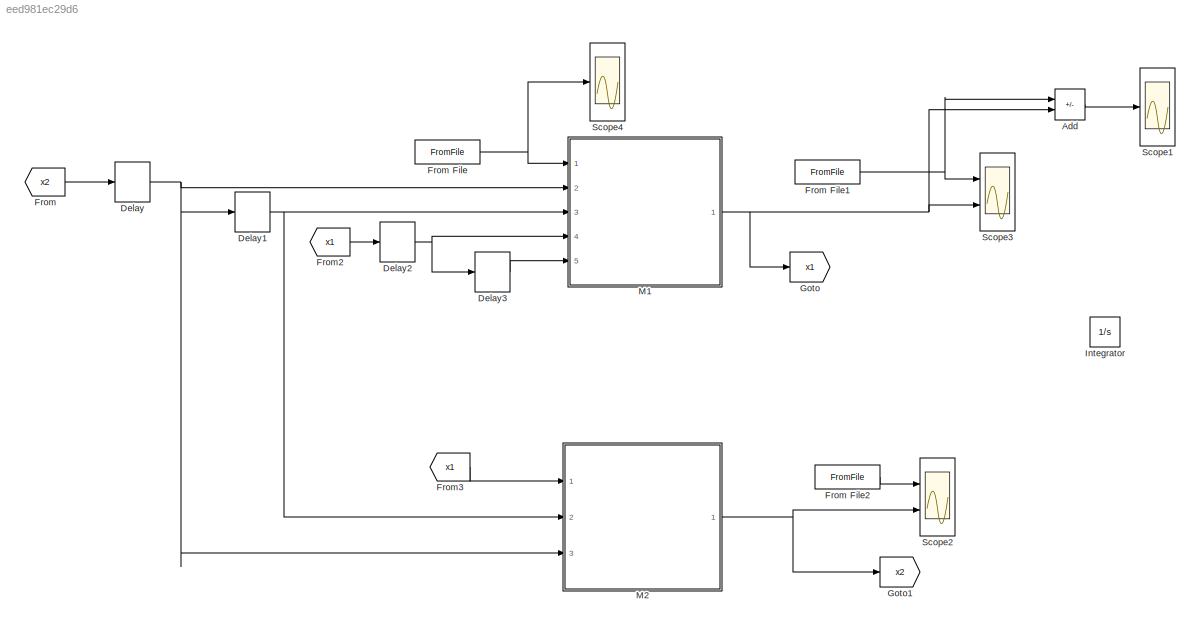
MODEL slx_eed981ec29d6
KIND model
CONFIG AbsTol = auto
CONFIG EnableMultiTasking = off
CONFIG FixedStep = 0.001
CONFIG MaxStep = auto
CONFIG MinStep = auto
CONFIG RelTol = 1e-3
CONFIG SampleTimeConstraint = Unconstrained
CONFIG SolverName = FixedStepDiscrete
CONFIG StartTime = 0.0
CONFIG StopTime = 10.0
BLOCK [Sum] Add
  IconShape = rectangular
  Inputs = +-
  Ports = [2, 1]
BLOCK [Delay] Delay
  DelayLength = 1
  InitialCondition = 0
  InputPortMap = u0
  Ports = [1, 1]
BLOCK [Delay] Delay1
  DelayLength = 1
  InitialCondition = 0
  InputPortMap = u0
  Ports = [1, 1]
BLOCK [Delay] Delay2
  DelayLength = 1
  InitialCondition = 0
  InputPortMap = u0
  Ports = [1, 1]
BLOCK [Delay] Delay3
  DelayLength = 1
  InitialCondition = 0
  InputPortMap = u0
  Ports = [1, 1]
BLOCK [From] From
  GotoTag = x2
  TagVisibility = global
BLOCK [FromFile] From File
  FileName = F.mat
  SampleTime = 0
BLOCK [FromFile] From File1
  FileName = x1_ss.mat
  SampleTime = 0
BLOCK [FromFile] From File2
  FileName = x2_ss.mat
  SampleTime = 0
BLOCK [From] From2
  GotoTag = x1
  TagVisibility = global
BLOCK [From] From3
  GotoTag = x1
  TagVisibility = global
BLOCK [Goto] Goto
  GotoTag = x1
  TagVisibility = global
BLOCK [Goto] Goto1
  GotoTag = x2
  TagVisibility = global
BLOCK [Integrator] Integrator
  Ports = [1, 1]
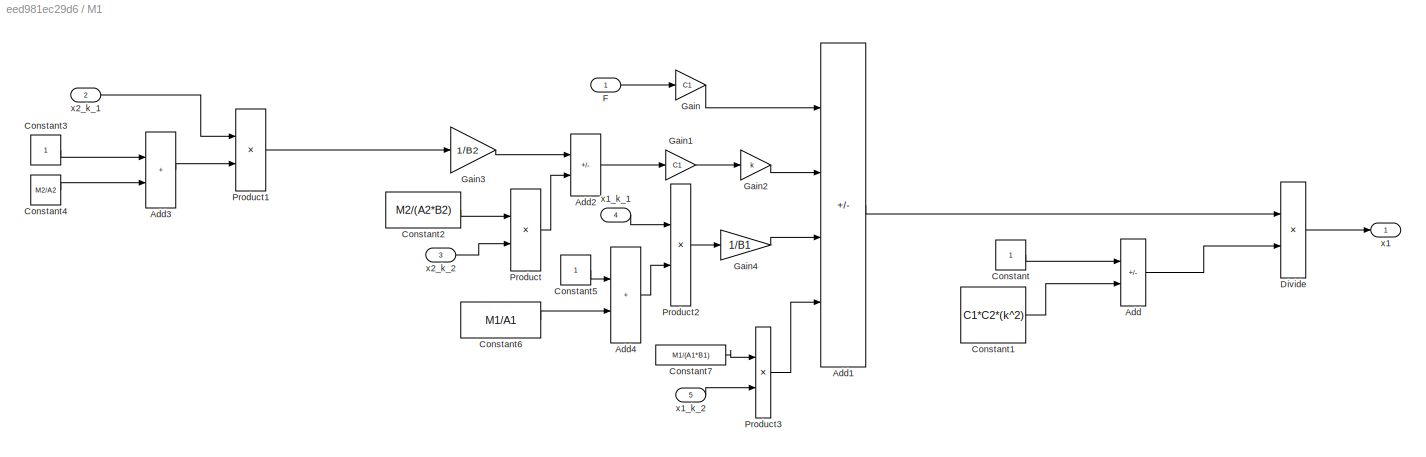
BLOCK [SubSystem] M1
  Ports = [5, 1]
  RequestExecContextInheritance = off
BLOCK [Sum] M1/Add
  IconShape = rectangular
  Inputs = +-
  Ports = [2, 1]
BLOCK [Sum] M1/Add1
  IconShape = rectangular
  Inputs = +++-
  Ports = [4, 1]
BLOCK [Sum] M1/Add2
  IconShape = rectangular
  Inputs = +-
  Ports = [2, 1]
BLOCK [Sum] M1/Add3
  IconShape = rectangular
  Ports = [2, 1]
BLOCK [Sum] M1/Add4
  IconShape = rectangular
  Ports = [2, 1]
BLOCK [Constant] M1/Constant
BLOCK [Constant] M1/Constant1
  Value = C1*C2*(k^2)
BLOCK [Constant] M1/Constant2
  Value = M2/(A2*B2)
BLOCK [Constant] M1/Constant3
BLOCK [Constant] M1/Constant4
  Value = M2/A2
BLOCK [Constant] M1/Constant5
BLOCK [Constant] M1/Constant6
  Value = M1/A1
BLOCK [Constant] M1/Constant7
  Value = M1/(A1*B1)
BLOCK [Product] M1/Divide
  Inputs = */
  Ports = [2, 1]
BLOCK [Inport] M1/F
BLOCK [Gain] M1/Gain
  Gain = C1
BLOCK [Gain] M1/Gain1
  Gain = C1
BLOCK [Gain] M1/Gain2
  Gain = k
BLOCK [Gain] M1/Gain3
  Gain = 1/B2
BLOCK [Gain] M1/Gain4
  Gain = 1/B1
BLOCK [Product] M1/Product
  Ports = [2, 1]
BLOCK [Product] M1/Product1
  Ports = [2, 1]
BLOCK [Product] M1/Product2
  Ports = [2, 1]
BLOCK [Product] M1/Product3
  Ports = [2, 1]
BLOCK [Outport] M1/x1
BLOCK [Inport] M1/x1_k_1
  Port = 4
BLOCK [Inport] M1/x1_k_2
  Port = 5
BLOCK [Inport] M1/x2_k_1
  Port = 2
BLOCK [Inport] M1/x2_k_2
  Port = 3
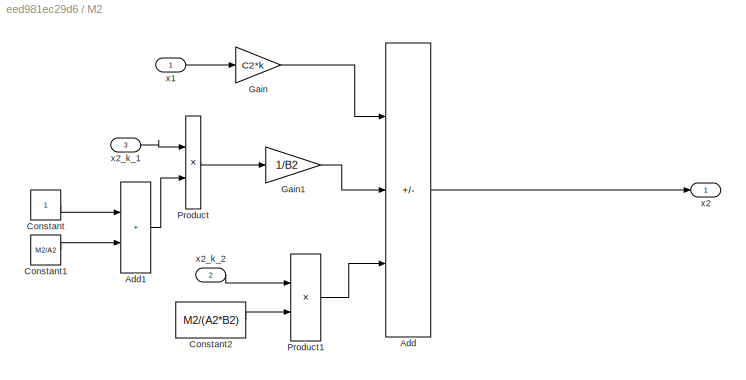
BLOCK [SubSystem] M2
  Ports = [3, 1]
  RequestExecContextInheritance = off
BLOCK [Sum] M2/Add
  IconShape = rectangular
  Inputs = ++-
  Ports = [3, 1]
BLOCK [Sum] M2/Add1
  IconShape = rectangular
  Ports = [2, 1]
BLOCK [Constant] M2/Constant
BLOCK [Constant] M2/Constant1
  Value = M2/A2
BLOCK [Constant] M2/Constant2
  Value = M2/(A2*B2)
BLOCK [Gain] M2/Gain
  Gain = C2*k
BLOCK [Gain] M2/Gain1
  Gain = 1/B2
BLOCK [Product] M2/Product
  Ports = [2, 1]
BLOCK [Product] M2/Product1
  Ports = [2, 1]
BLOCK [Inport] M2/x1
BLOCK [Outport] M2/x2
BLOCK [Inport] M2/x2_k_1
  Port = 3
BLOCK [Inport] M2/x2_k_2
  Port = 2
BLOCK [Scope] Scope1
  Floating = off
  NumInputPorts = 1
  Ports = [1]
  ScopeSpecificationString = Simulink.scopes.TimeScopeBlockCfg('CurrentConfiguration', extmgr.ConfigurationSet(extmgr.Configuration('Core','General UI',true),extmgr.Configuration('Core','Source UI',true),extmgr.Configuration('Sources','WiredSimulink',true,'DataLoggingVariableName','ScopeData2'),extmgr.Configuration('Visuals','Time Domain',true,'SerializedDisplays',{struct('MinYLimReal','-5.01005','MaxYLimReal','0.55667','YLab...<+1402ch>
BLOCK [Scope] Scope2
  Floating = off
  NumInputPorts = 2
  Ports = [2]
  ScopeSpecificationString = Simulink.scopes.TimeScopeBlockCfg('CurrentConfiguration', extmgr.ConfigurationSet(extmgr.Configuration('Core','General UI',true),extmgr.Configuration('Core','Source UI',true),extmgr.Configuration('Sources','WiredSimulink',true),extmgr.Configuration('Visuals','Time Domain',true,'SerializedDisplays',{struct('MinYLimReal','-0.15644','MaxYLimReal','1.40795','YLabelReal','','MinYLimMag','0.00000','MaxY...<+1419ch>
BLOCK [Scope] Scope3
  Floating = off
  NumInputPorts = 2
  Ports = [2]
  ScopeSpecificationString = Simulink.scopes.TimeScopeBlockCfg('CurrentConfiguration', extmgr.ConfigurationSet(extmgr.Configuration('Core','General UI',true),extmgr.Configuration('Core','Source UI',true),extmgr.Configuration('Sources','WiredSimulink',true,'DataLoggingVariableName','ScopeData1'),extmgr.Configuration('Visuals','Time Domain',true,'PlotType','Stairs','SerializedDisplays',{struct('MinYLimReal','0.17682','MaxYLimRe...<+1693ch>
BLOCK [Scope] Scope4
  Floating = off
  NumInputPorts = 1
  Ports = [1]
  ScopeSpecificationString = Simulink.scopes.TimeScopeBlockCfg('CurrentConfiguration', extmgr.ConfigurationSet(extmgr.Configuration('Core','General UI',true),extmgr.Configuration('Core','Source UI',true),extmgr.Configuration('Sources','WiredSimulink',true,'DataLoggingVariableName','ScopeData1'),extmgr.Configuration('Visuals','Time Domain',true,'SerializedDisplays',{struct('MinYLimReal','-0.125','MaxYLimReal','1.125','YLabelRe...<+1396ch>
LINE Add:1 -> Scope1:1
NET Delay1:1 -> M1:3, M2:2
NET Delay2:1 -> Delay3:1, M1:4
LINE Delay3:1 -> M1:5
NET Delay:1 -> Delay1:1, M1:2, M2:3
NET From File1:1 -> Add:1, Scope3:1
LINE From File2:1 -> Scope2:1
NET From File:1 -> M1:1, Scope4:1
LINE From2:1 -> Delay2:1
LINE From3:1 -> M2:1
LINE From:1 -> Delay:1
LINE M1/Add1:1 -> M1/Divide:1
LINE M1/Add2:1 -> M1/Gain1:1
LINE M1/Add3:1 -> M1/Product1:2
LINE M1/Add4:1 -> M1/Product2:2
LINE M1/Add:1 -> M1/Divide:2
LINE M1/Constant1:1 -> M1/Add:2
LINE M1/Constant2:1 -> M1/Product:1
LINE M1/Constant3:1 -> M1/Add3:1
LINE M1/Constant4:1 -> M1/Add3:2
LINE M1/Constant5:1 -> M1/Add4:1
LINE M1/Constant6:1 -> M1/Add4:2
LINE M1/Constant7:1 -> M1/Product3:1
LINE M1/Constant:1 -> M1/Add:1
LINE M1/Divide:1 -> M1/x1:1
LINE M1/F:1 -> M1/Gain:1
LINE M1/Gain1:1 -> M1/Gain2:1
LINE M1/Gain2:1 -> M1/Add1:2
LINE M1/Gain3:1 -> M1/Add2:1
LINE M1/Gain4:1 -> M1/Add1:3
LINE M1/Gain:1 -> M1/Add1:1
LINE M1/Product1:1 -> M1/Gain3:1
LINE M1/Product2:1 -> M1/Gain4:1
LINE M1/Product3:1 -> M1/Add1:4
LINE M1/Product:1 -> M1/Add2:2
LINE M1/x1_k_1:1 -> M1/Product2:1
LINE M1/x1_k_2:1 -> M1/Product3:2
LINE M1/x2_k_1:1 -> M1/Product1:1
LINE M1/x2_k_2:1 -> M1/Product:2
NET M1:1 -> Add:2, Goto:1, Scope3:2
LINE M2/Add1:1 -> M2/Product:2
LINE M2/Add:1 -> M2/x2:1
LINE M2/Constant1:1 -> M2/Add1:2
LINE M2/Constant2:1 -> M2/Product1:2
LINE M2/Constant:1 -> M2/Add1:1
LINE M2/Gain1:1 -> M2/Add:2
LINE M2/Gain:1 -> M2/Add:1
LINE M2/Product1:1 -> M2/Add:3
LINE M2/Product:1 -> M2/Gain1:1
LINE M2/x1:1 -> M2/Gain:1
LINE M2/x2_k_1:1 -> M2/Product:1
LINE M2/x2_k_2:1 -> M2/Product1:1
NET M2:1 -> Goto1:1, Scope2:2
note: NET lines group one-source signal fan-out (src -> all destinations, sorted); 1:1 wires keep LINE
